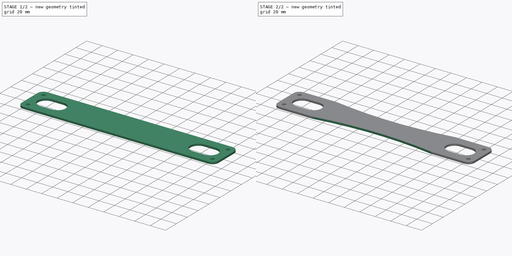
[diagram: build sequence overview — one tinted view per stage of 2, left to right]
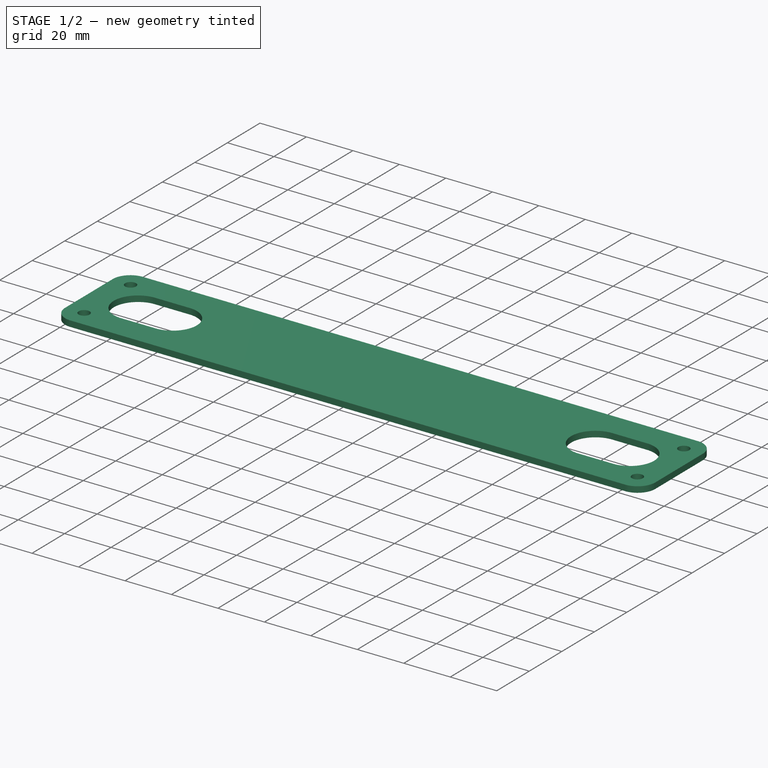
[diagram: stage 1 of 2 — iso view after this stage's code; geometry added in this stage tinted green]
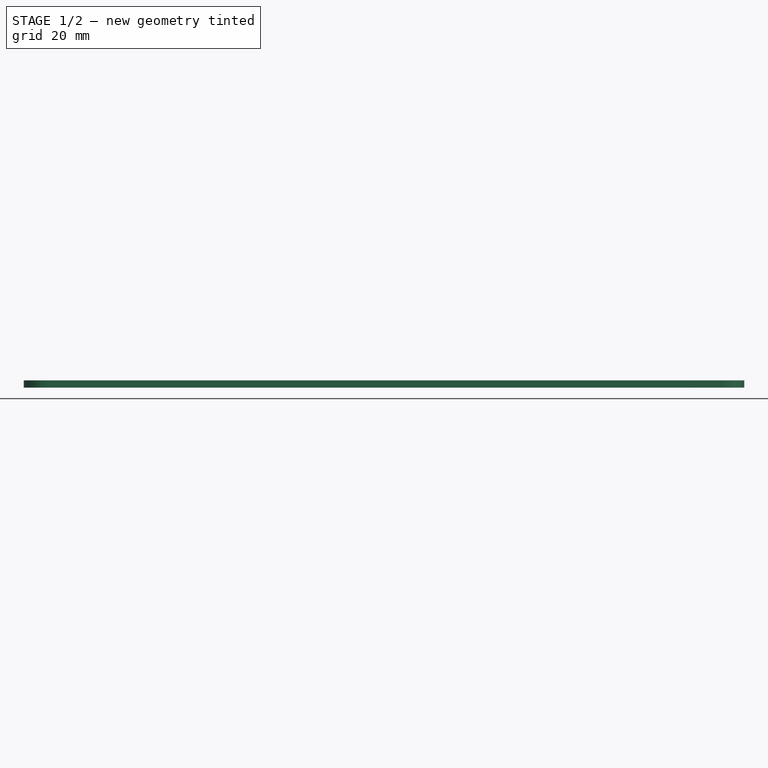
[diagram: stage 1 of 2 — front view after this stage's code; geometry added in this stage tinted green]
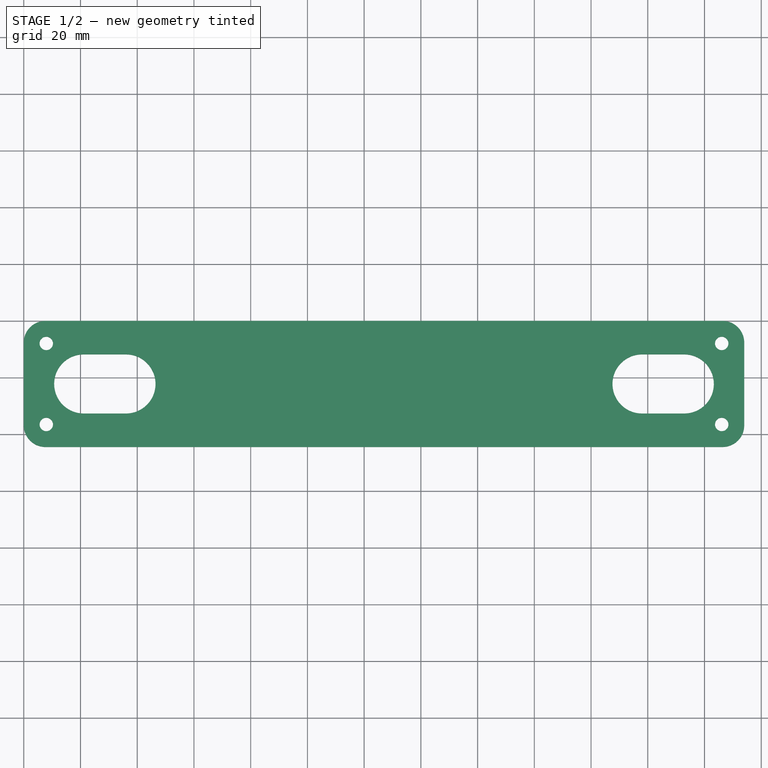
[diagram: stage 1 of 2 — top view after this stage's code; geometry added in this stage tinted green]
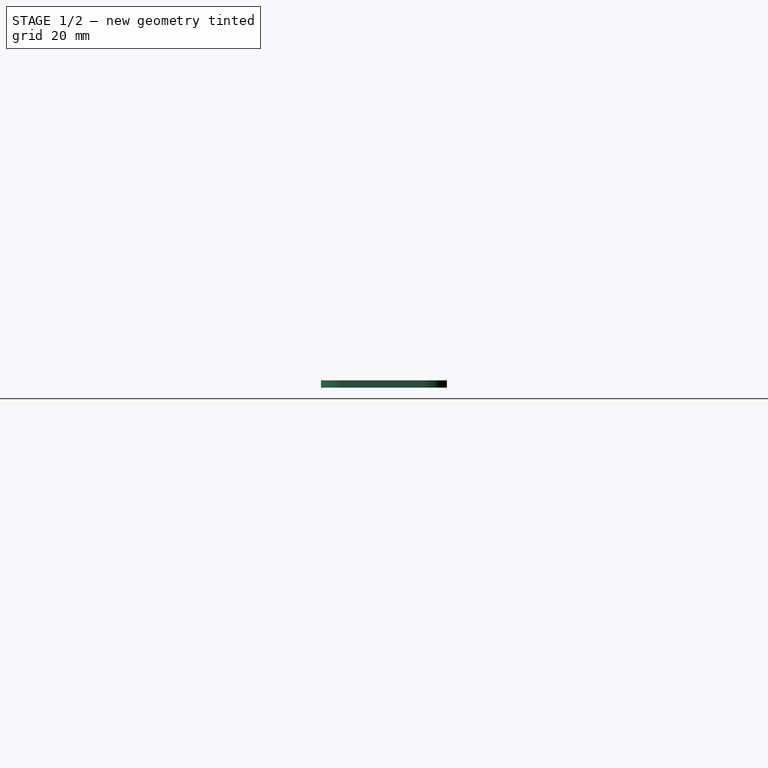
[diagram: stage 1 of 2 — right view after this stage's code; geometry added in this stage tinted green]
FCSTD DOCUMENT  (FreeCAD 0.19R24291 (Git))
Label: apache case lower retainer
License: All rights reserved
LicenseURL: http://en.wikipedia.org/wiki/All_rights_reserved
objects: Sketcher::SketchObject×2, PartDesign::Pad×1, PartDesign::Fillet×1, PartDesign::Pocket×1, PartDesign::Body×1
note: 9 computed .brp shape members not serialized (recipe doc carries the construction recipe); baked Part::Feature solids carry a one-line shape summary decoded from their .brp

FEATURE [Sketcher::SketchObject] Sketch
  FullyConstrained = true
  MapMode = 5
  Support = -> [XY_Plane]
  sketch-geometry (40):
    g0: LineSegment StartX=0 StartY=0 StartZ=0 EndX=254 EndY=0 EndZ=0
    g1: LineSegment StartX=254 StartY=0 StartZ=0 EndX=254 EndY=-44.45 EndZ=0
    g2: LineSegment StartX=254 StartY=-44.45 StartZ=0 EndX=0 EndY=-44.45 EndZ=0
    g3: LineSegment StartX=0 StartY=-44.45 StartZ=0 EndX=0 EndY=0 EndZ=0
    g4: ArcOfCircle CenterX=36.0299 CenterY=-22.225 CenterZ=0 NormalX=0 NormalY=0 NormalZ=1 AngleXU=0 Radius=10.414 StartAngle=4.71239 EndAngle=7.85398
    g5: ArcOfCircle CenterX=21.1296 CenterY=-22.225 CenterZ=0 NormalX=0 NormalY=0 NormalZ=1 AngleXU=0 Radius=10.414 StartAngle=1.5708 EndAngle=4.71239
    g6: LineSegment StartX=36.0299 StartY=-11.811 StartZ=0 EndX=21.1296 EndY=-11.811 EndZ=0
    g7: LineSegment StartX=36.0299 StartY=-32.639 StartZ=0 EndX=21.1296 EndY=-32.639 EndZ=0
    g8: ArcOfCircle CenterX=232.87 CenterY=-22.225 CenterZ=0 NormalX=0 NormalY=0 NormalZ=1 AngleXU=0 Radius=10.414 StartAngle=4.71239 EndAngle=7.85398
    g9: ArcOfCircle CenterX=217.97 CenterY=-22.225 CenterZ=0 NormalX=0 NormalY=0 NormalZ=1 AngleXU=0 Radius=10.414 StartAngle=1.5708 EndAngle=4.71239
    g10: LineSegment StartX=232.87 StartY=-11.811 StartZ=0 EndX=217.97 EndY=-11.811 EndZ=0
    g11: LineSegment StartX=232.87 StartY=-32.639 StartZ=0 EndX=217.97 EndY=-32.639 EndZ=0
    g12: LineSegment StartX=232.87 StartY=-11.811 StartZ=0 EndX=232.87 EndY=-32.639 EndZ=0
    g13: LineSegment StartX=36.0299 StartY=-11.811 StartZ=0 EndX=36.0299 EndY=-32.639 EndZ=0
    g14: LineSegment StartX=21.1296 StartY=-22.225 StartZ=0 EndX=232.87 EndY=-22.225 EndZ=0
    g15: LineSegment StartX=217.97 StartY=-22.225 StartZ=0 EndX=254 EndY=-22.225 EndZ=0
    g16: LineSegment StartX=36.0299 StartY=-22.225 StartZ=0 EndX=0 EndY=-22.225 EndZ=0
    g17: LineSegment StartX=232.87 StartY=-32.639 StartZ=0 EndX=232.87 EndY=-44.45 EndZ=0
    g18: LineSegment StartX=232.87 StartY=-11.811 StartZ=0 EndX=232.87 EndY=0 EndZ=0
    g19: LineSegment StartX=243.284 StartY=0 StartZ=0 EndX=243.284 EndY=-44.45 EndZ=0
    g20: LineSegment StartX=10.7156 StartY=0 StartZ=0 EndX=10.7156 EndY=-44.45 EndZ=0
    g21: LineSegment StartX=46.4439 StartY=0 StartZ=0 EndX=46.4439 EndY=-44.45 EndZ=0
    g22: LineSegment StartX=207.556 StartY=0 StartZ=0 EndX=207.556 EndY=-44.45 EndZ=0
    g23: Circle CenterX=7.9375 CenterY=-7.9375 CenterZ=0 NormalX=0 NormalY=0 NormalZ=1 AngleXU=0 Radius=2.3622
    g24: Circle CenterX=7.9375 CenterY=-36.5125 CenterZ=0 NormalX=0 NormalY=0 NormalZ=1 AngleXU=0 Radius=2.3622
    g25: Circle CenterX=246.062 CenterY=-7.9375 CenterZ=0 NormalX=0 NormalY=0 NormalZ=1 AngleXU=0 Radius=2.3622
    g26: Circle CenterX=246.063 CenterY=-36.5125 CenterZ=0 NormalX=0 NormalY=0 NormalZ=1 AngleXU=0 Radius=2.3622
    g27: LineSegment StartX=7.9375 StartY=-7.9375 StartZ=0 EndX=7.9375 EndY=-36.5125 EndZ=0
    g28: LineSegment StartX=7.9375 StartY=-7.9375 StartZ=0 EndX=246.062 EndY=-7.9375 EndZ=0
    g29: LineSegment StartX=7.9375 StartY=-36.5125 StartZ=0 EndX=246.063 EndY=-36.5125 EndZ=0
    g30: LineSegment StartX=7.9375 StartY=-7.9375 StartZ=0 EndX=0 EndY=-7.9375 EndZ=0
    g31: LineSegment StartX=7.9375 StartY=-7.9375 StartZ=0 EndX=7.9375 EndY=0 EndZ=0
    g32: LineSegment StartX=7.9375 StartY=-36.5125 StartZ=0 EndX=0 EndY=-36.5125 EndZ=0
    g33: LineSegment StartX=7.9375 StartY=-36.5125 StartZ=0 EndX=7.9375 EndY=-44.45 EndZ=0
    g34: Circle CenterX=7.9375 CenterY=-7.9375 CenterZ=0 NormalX=0 NormalY=0 NormalZ=1 AngleXU=0 Radius=4.8514
    g35: LineSegment StartX=246.062 StartY=-7.9375 StartZ=0 EndX=246.062 EndY=0 EndZ=0
    g36: LineSegment StartX=246.063 StartY=-36.5125 StartZ=0 EndX=246.063 EndY=-44.45 EndZ=0
    g37: LineSegment StartX=246.063 StartY=-36.5125 StartZ=0 EndX=254 EndY=-36.5125 EndZ=0
    g38: LineSegment StartX=246.062 StartY=-7.9375 StartZ=0 EndX=254 EndY=-7.9375 EndZ=0
    g39: Circle CenterX=7.9375 CenterY=-36.5125 CenterZ=0 NormalX=0 NormalY=0 NormalZ=1 AngleXU=0 Radius=4.8514
  constraints (111):
    c: Coincident(g0,g1)
    c: Coincident(g1,g2)
    c: Coincident(g2,g3)
    c: Coincident(g3,g0)
    c: Horizontal(g0)
    c: Horizontal(g2)
    c: Vertical(g1)
    c: Vertical(g3)
    c: Coincident(g0,g-1)
    c: Tangent(g4,g7) = 1.5708
    c: Tangent(g4,g6) = -1.5708
    c: Tangent(g6,g5) = -1.5708
    c: Tangent(g7,g5) = 1.5708
    c: Horizontal(g6)
    c: Equal(g4,g5)
    c: Tangent(g8,g11) = 1.5708
    c: Tangent(g8,g10) = -1.5708
    c: Tangent(g10,g9) = -1.5708
    c: Tangent(g11,g9) = 1.5708
    c: Horizontal(g10)
    c: Equal(g8,g9)
    c: Coincident(g12,g8)
    c: Coincident(g12,g8)
    c: Coincident(g13,g4)
    c: Coincident(g13,g4)
    c: Equal(g12,g13)
    c: Coincident(g14,g5)
    c: Coincident(g14,g8)
    c: Horizontal(g14)
    c: Equal(g11,g7)
    c: Coincident(g15,g9)
    c: PointOnObject(g15,g1)
    c: Horizontal(g15)
    c: Coincident(g16,g4)
    c: PointOnObject(g16,g3)
    c: Horizontal(g16)
    c: Equal(g15,g16)
    c: DistanceX(g0,g0) = 254
    c: Coincident(g17,g8)
    c: PointOnObject(g17,g2)
    c: Coincident(g18,g8)
    c: PointOnObject(g18,g0)
    c: Vertical(g18)
    c: Vertical(g17)
    c: Equal(g17,g18)
    c: DistanceY(g1,g1) = 44.45
    c: DistanceY(g13,g13) = 20.828
    c: Vertical(g19)
    c: Vertical(g20)
    c: Tangent(g8,g19)
    c: Tangent(g20,g5)
    c: DistanceX(g20,g19) = 232.569
    c: Equal(g19,g20)
    c: PointOnObject(g19,g0)
    c: PointOnObject(g20,g0)
    c: PointOnObject(g20,g2)
    c: PointOnObject(g21,g0)
    c: PointOnObject(g21,g2)
    c: Vertical(g21)
    c: PointOnObject(g22,g0)
    c: PointOnObject(g22,g2)
    c: Vertical(g22)
    c: DistanceX(g21,g22) = 161.112
    c: Equal(g23,g24)
    c: Equal(g23,g25)
    c: Equal(g23,g26)
    c: Radius(g23) = 2.3622
    c: Coincident(g27,g23)
    c: Coincident(g27,g24)
    c: Vertical(g27)
    c: Coincident(g28,g23)
    c: Coincident(g28,g25)
    c: Horizontal(g28)
    c: Coincident(g29,g24)
    c: Coincident(g29,g26)
    c: Horizontal(g29)
    c: Coincident(g30,g23)
    c: PointOnObject(g30,g3)
    c: Horizontal(g30)
    c: Coincident(g31,g23)
    c: PointOnObject(g31,g0)
    c: Vertical(g31)
    c: Coincident(g32,g24)
    c: PointOnObject(g32,g3)
    c: Horizontal(g32)
    c: Coincident(g33,g24)
    c: PointOnObject(g33,g2)
    c: Vertical(g33)
    c: Equal(g31,g30)
    c: Equal(g31,g33)
    c: Coincident(g34,g23)
    c: Radius(g34) = 4.8514
    c: Coincident(g35,g25)
    c: PointOnObject(g35,g0)
    c: Vertical(g35)
    c: Coincident(g36,g26)
    c: PointOnObject(g36,g2)
    c: Vertical(g36)
    c: Coincident(g37,g26)
    c: PointOnObject(g37,g1)
    c: Coincident(g38,g25)
    c: PointOnObject(g38,g1)
    c: Horizontal(g38)
    c: Equal(g38,g35)
    c: Equal(g38,g37)
    c: Horizontal(g37)
    c: Coincident(g39,g24)
    c: Equal(g34,g39)
    c: DistanceX(g2,g33) = 7.9375
    c: Tangent(g21,g4)
    c: Tangent(g22,g9)
FEATURE [PartDesign::Pad] Pad
  Direction = (1,1,1)
  Length = 2.54
  Length2 = 99.9998
  Profile = -> Sketch
  Type = 0
FEATURE [PartDesign::Fillet] Fillet
  Base = -> Pad [Edge8,Edge1,Edge5,Edge2]
  BaseFeature = -> Pad
  Radius = 7.62
  SupportTransform = false
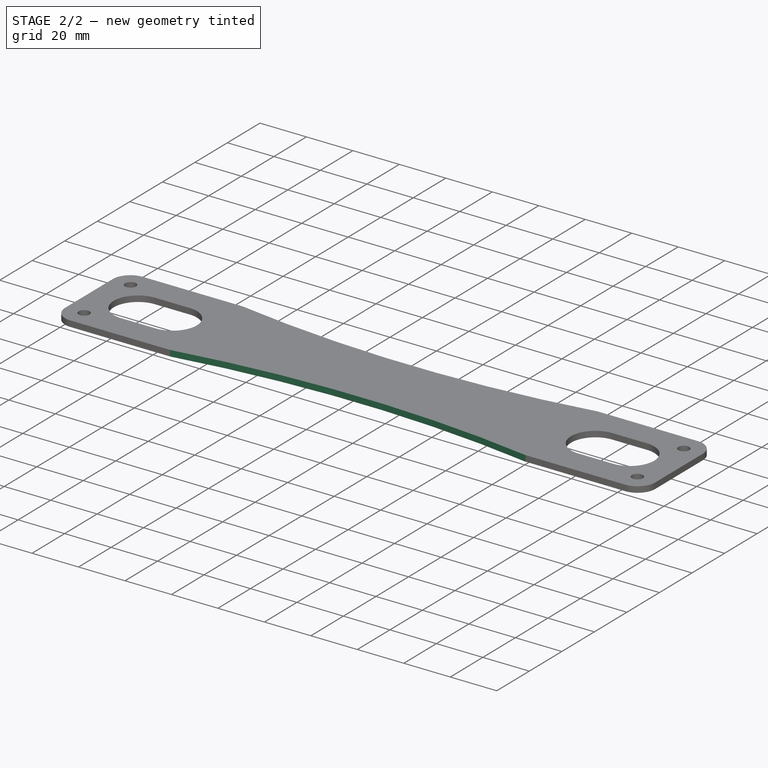
[diagram: stage 2 of 2 — iso view after this stage's code; geometry added in this stage tinted green]
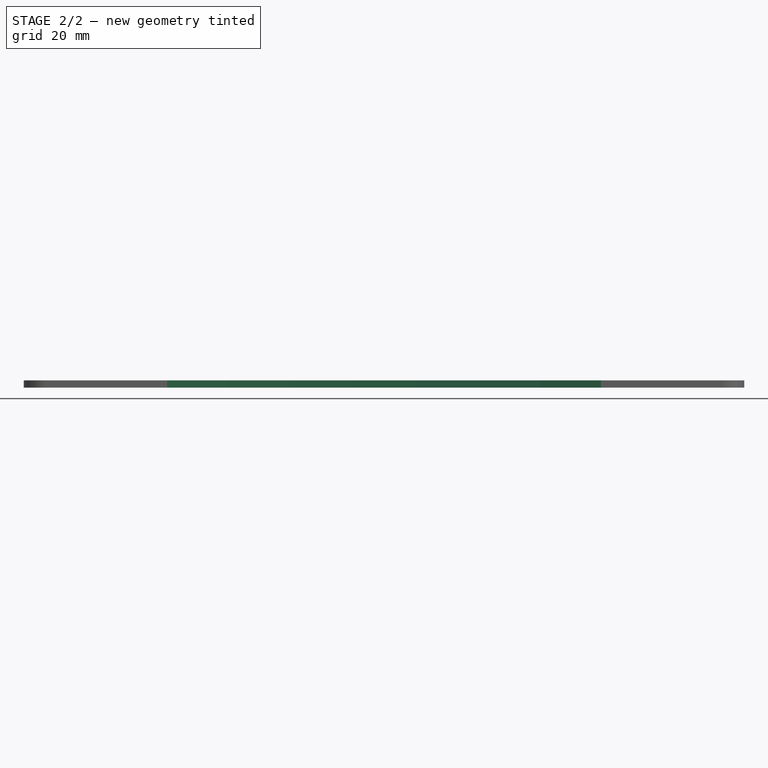
[diagram: stage 2 of 2 — front view after this stage's code; geometry added in this stage tinted green]
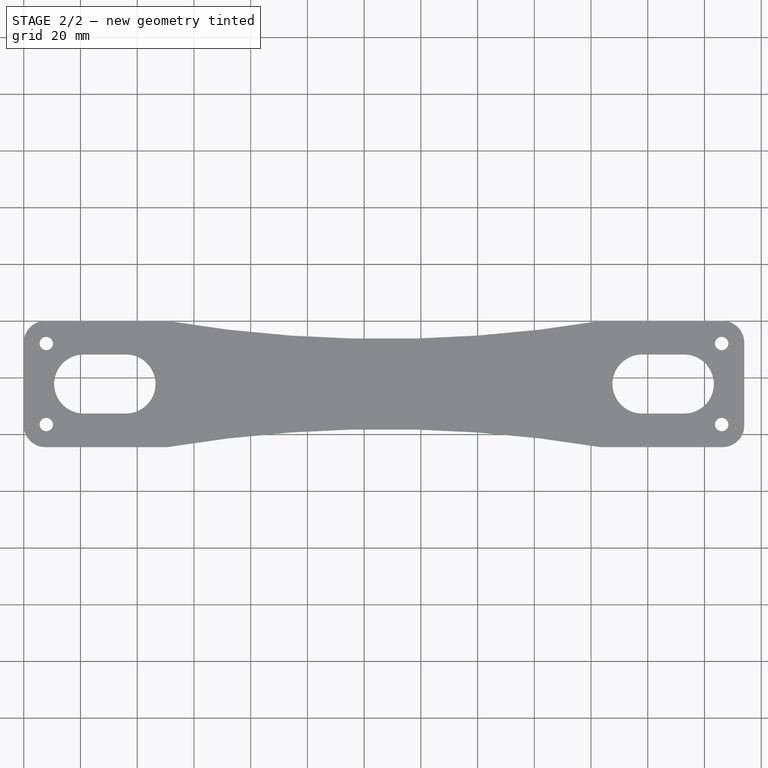
[diagram: stage 2 of 2 — top view after this stage's code; geometry added in this stage tinted green]
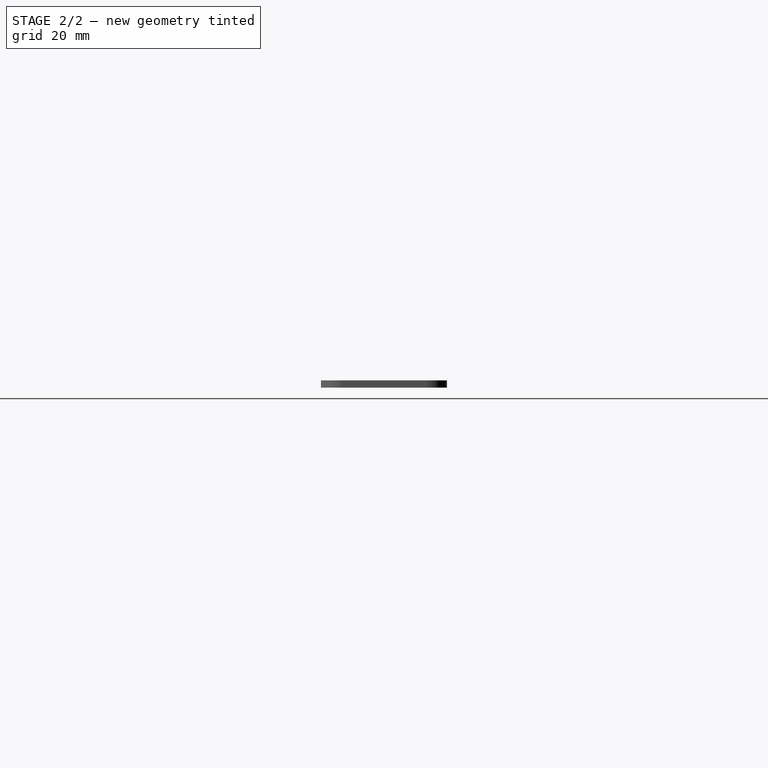
[diagram: stage 2 of 2 — right view after this stage's code; geometry added in this stage tinted green]
FEATURE [Sketcher::SketchObject] Sketch001
  FullyConstrained = false
  MapMode = 5
  Support = -> [XY_Plane]
  sketch-geometry (14):
    g0: LineSegment StartX=0 StartY=0 StartZ=0 EndX=254 EndY=0 EndZ=0
    g1: LineSegment StartX=254 StartY=0 StartZ=0 EndX=254 EndY=-44.45 EndZ=0
    g2: LineSegment StartX=254 StartY=-44.45 StartZ=0 EndX=0 EndY=-44.45 EndZ=0
    g3: LineSegment StartX=0 StartY=-44.45 StartZ=0 EndX=0 EndY=0 EndZ=0
    g4: LineSegment StartX=0 StartY=-22.225 StartZ=0 EndX=254 EndY=-22.225 EndZ=0
    g5: LineSegment StartX=30.9076 StartY=-22.225 StartZ=0 EndX=30.9076 EndY=0 EndZ=0
    g6: LineSegment StartX=30.9076 StartY=-22.225 StartZ=0 EndX=30.9076 EndY=-44.45 EndZ=0
    g7: LineSegment StartX=127 StartY=0 StartZ=0 EndX=127 EndY=-44.45 EndZ=0
    g8: LineSegment StartX=127 StartY=-9.82632 StartZ=0 EndX=254 EndY=-9.82632 EndZ=0
    g9: LineSegment StartX=127 StartY=-9.82632 StartZ=0 EndX=0 EndY=-9.82632 EndZ=0
    g10: LineSegment StartX=127 StartY=-44.45 StartZ=0 EndX=127 EndY=-501.65 EndZ=0
    g11: Circle CenterX=127 CenterY=-501.65 CenterZ=0 NormalX=0 NormalY=0 NormalZ=1 AngleXU=0 Radius=463.55
    g12: LineSegment StartX=127 StartY=0 StartZ=0 EndX=127 EndY=457.2 EndZ=0
    g13: Circle CenterX=127 CenterY=457.2 CenterZ=0 NormalX=0 NormalY=0 NormalZ=1 AngleXU=0 Radius=463.55
  constraints (41):
    c: Coincident(g0,g1)
    c: Coincident(g1,g2)
    c: Coincident(g2,g3)
    c: Coincident(g3,g0)
    c: Horizontal(g0)
    c: Horizontal(g2)
    c: Vertical(g1)
    c: Vertical(g3)
    c: Coincident(g0,g-1)
    c: DistanceX(g0,g0) = 254
    c: DistanceY(g1,g1) = 44.45
    c: PointOnObject(g4,g3)
    c: PointOnObject(g4,g1)
    c: Horizontal(g4)
    c: PointOnObject(g5,g4)
    c: PointOnObject(g5,g0)
    c: Vertical(g5)
    c: Coincident(g6,g5)
    c: PointOnObject(g6,g2)
    c: Vertical(g6)
    c: Equal(g5,g6)
    c: PointOnObject(g7,g0)
    c: PointOnObject(g7,g2)
    c: Vertical(g7)
    c: PointOnObject(g8,g7)
    c: PointOnObject(g8,g1)
    c: Horizontal(g8)
    c: Coincident(g9,g8)
    c: PointOnObject(g9,g3)
    c: Horizontal(g9)
    c: Equal(g8,g9)
    c: Coincident(g10,g7)
    c: Vertical(g10)
    c: Coincident(g11,g10)
    c: DistanceY(g10,g10) = 457.2
    c: Radius(g11) = 463.55
    c: Coincident(g12,g7)
    c: Vertical(g12)
    c: Coincident(g13,g12)
    c: Equal(g12,g10)
    c: Equal(g11,g13)
FEATURE [PartDesign::Pocket] Pocket
  BaseFeature = -> Fillet
  Length = 5.00126
  Length2 = 99.9998
  Profile = -> Sketch001
  Reversed = true
  Type = 0
FEATURE [PartDesign::Body] Body
  Group = -> [Sketch,Pad,Fillet,Sketch001,Pocket]
  Origin = -> Origin
  Tip = -> Pocket
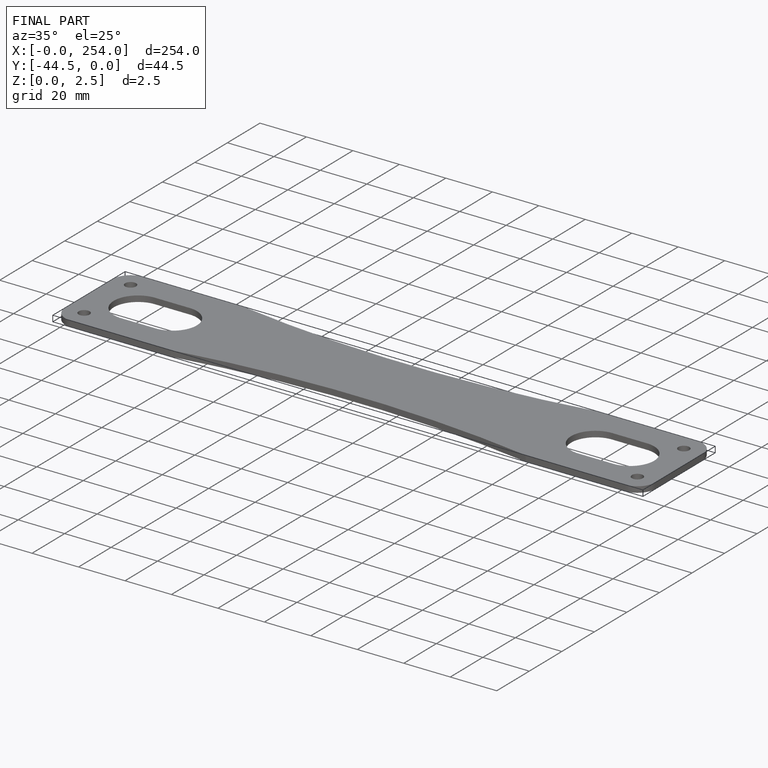
[diagram: finished part — iso view with bounding-box wireframe]
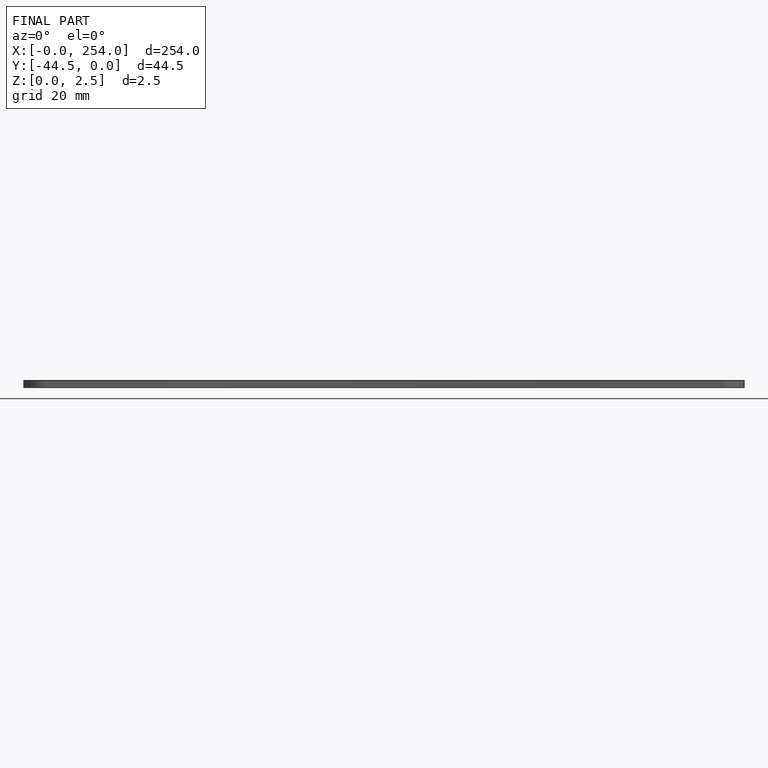
[diagram: finished part — front view with bounding-box wireframe]
